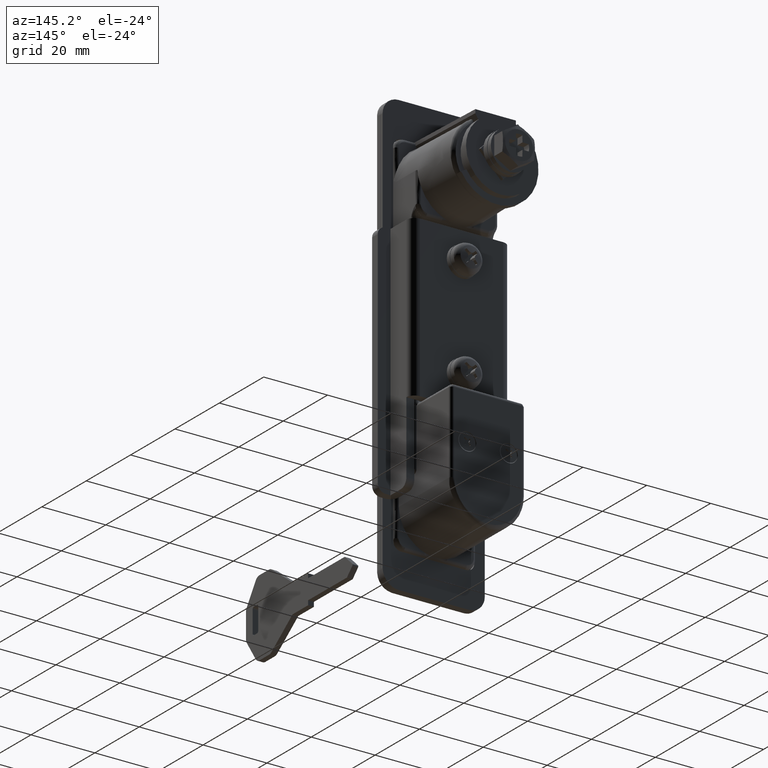
[diagram: clean part render]
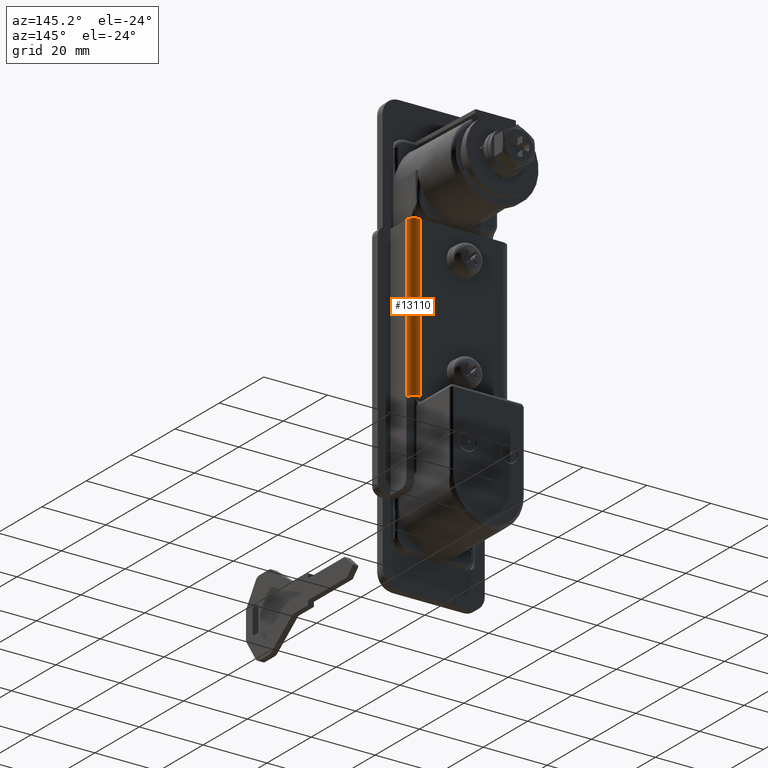
[diagram: same view with one face highlighted and labeled with its STEP entity id]
A machine part, auxiliary view. The second image highlights one B-rep face of the part: STEP entity #13110.
In plain terms, the highlighted face is a freeform B-spline surface patch.
Its self-contained STEP definition (entity closure, byte-faithful):
#12535=CARTESIAN_POINT('',(14.0,-15.500000000000000,-64.500000000000000));
#12536=VERTEX_POINT('',#12535);
#12841=CARTESIAN_POINT('',(16.500000000000000,-13.0,-64.500000000000000));
#12842=VERTEX_POINT('',#12841);
#12848=CARTESIAN_POINT('',(16.500000000000000,-13.0,-64.500000000000000));
#12849=CARTESIAN_POINT('',(16.500428733027238,-13.347789860478240,-64.500000000000071));
#12850=CARTESIAN_POINT('',(16.387218061408969,-13.879186228517209,-64.499999999999844));
#12851=CARTESIAN_POINT('',(16.024390919544910,-14.501402472837640,-64.500000000000185));
#12852=CARTESIAN_POINT('',(15.604280072668510,-14.953733656219709,-64.499999999999872));
#12853=CARTESIAN_POINT('',(14.940584301826179,-15.374260406960090,-64.500000000000043));
#12854=CARTESIAN_POINT('',(14.347754982098690,-15.500368558528709,-64.499999999999787));
#12855=CARTESIAN_POINT('',(14.0,-15.500000000000000,-64.500000000000000));
#12856=B_SPLINE_CURVE_WITH_KNOTS('',3,(#12848,#12849,#12850,#12851,#12852,#12853,#12854,#12855),.UNSPECIFIED.,.F.,.U.,(4,1,1,1,1,4),(0.000000307276075,1.043135946016094,1.595421393527279,2.147583914371741,2.883953722124254,3.927089360864204),.UNSPECIFIED.);
#12857=EDGE_CURVE('',#12842,#12536,#12856,.T.);
#12883=CARTESIAN_POINT('',(14.0,-15.500000000000000,-14.500000000000000));
#12884=VERTEX_POINT('',#12883);
#12890=CARTESIAN_POINT('',(16.500000000000000,-12.999999781833839,-14.500000000000000));
#12891=VERTEX_POINT('',#12890);
#12892=CARTESIAN_POINT('',(14.0,-15.500000000000000,-14.500000000000000));
#12893=CARTESIAN_POINT('',(14.306830327201631,-15.500239474784919,-14.500000000000011));
#12894=CARTESIAN_POINT('',(14.838417821968040,-15.400835236632490,-14.500000000000000));
#12895=CARTESIAN_POINT('',(15.525564627260961,-15.022645740817140,-14.500000000000000));
#12896=CARTESIAN_POINT('',(15.978735568118850,-14.569401348395930,-14.500000000000030));
#12897=CARTESIAN_POINT('',(16.380293647900672,-13.899527803951390,-14.499999999999909));
#12898=CARTESIAN_POINT('',(16.500619982011688,-13.368296679224990,-14.500000000000030));
#12899=CARTESIAN_POINT('',(16.500000000000000,-12.999999781833839,-14.500000000000000));
#12900=B_SPLINE_CURVE_WITH_KNOTS('',3,(#12892,#12893,#12894,#12895,#12896,#12897,#12898,#12899),.UNSPECIFIED.,.F.,.U.,(4,1,1,1,1,4),(0.000000307128166,0.920409224027607,1.595421443331547,2.331668347669408,2.822587033921054,3.927089483829320),.UNSPECIFIED.);
#12901=EDGE_CURVE('',#12884,#12891,#12900,.T.);
#13082=CARTESIAN_POINT('',(16.497620553954640,-12.890951531586660,-65.750000000000000));
#13083=CARTESIAN_POINT('',(16.497620553954640,-12.890951531586660,-13.218750000000000));
#13084=CARTESIAN_POINT('',(16.618731147697456,-15.664840176103313,-65.750000000000000));
#13085=CARTESIAN_POINT('',(16.618731147697456,-15.664840176103313,-13.218750000000000));
#13086=CARTESIAN_POINT('',(13.847378651162860,-15.495336996054670,-65.750000000000000));
#13087=CARTESIAN_POINT('',(13.847378651162860,-15.495336996054670,-13.218750000000000));
#13095=(BOUNDED_SURFACE()B_SPLINE_SURFACE(1,2,((#13082,#13084,#13086),(#13083,#13085,#13087)),.UNSPECIFIED.,.F.,.F.,.U.)B_SPLINE_SURFACE_WITH_KNOTS((2,2),(3,3),(0.0,52.531250000000000),(0.0,4.452286853085357),.UNSPECIFIED.)GEOMETRIC_REPRESENTATION_ITEM()RATIONAL_B_SPLINE_SURFACE(((1.0,0.669130606358859,1.0),(1.0,0.669130606358859,1.0)))REPRESENTATION_ITEM('')SURFACE());
#13096=ORIENTED_EDGE('',*,*,#12857,.F.);
#13097=CARTESIAN_POINT('',(16.500000000000000,-13.0,-64.500000000000000));
#13098=CARTESIAN_POINT('',(16.500000000000000,-12.999999781833839,-14.500000000000000));
#13099=QUASI_UNIFORM_CURVE('',1,(#13097,#13098),.UNSPECIFIED.,.F.,.U.);
#13100=EDGE_CURVE('',#12842,#12891,#13099,.T.);
#13101=ORIENTED_EDGE('',*,*,#13100,.T.);
#13102=ORIENTED_EDGE('',*,*,#12901,.F.);
#13103=CARTESIAN_POINT('',(14.0,-15.500000000000000,-64.500000000000000));
#13104=CARTESIAN_POINT('',(14.0,-15.500000000000000,-14.500000000000000));
#13105=QUASI_UNIFORM_CURVE('',1,(#13103,#13104),.UNSPECIFIED.,.F.,.U.);
#13106=EDGE_CURVE('',#12536,#12884,#13105,.T.);
#13107=ORIENTED_EDGE('',*,*,#13106,.F.);
#13108=EDGE_LOOP('',(#13096,#13101,#13102,#13107));
#13109=FACE_OUTER_BOUND('',#13108,.T.);
#13110=ADVANCED_FACE('',(#13109),#13095,.T.);